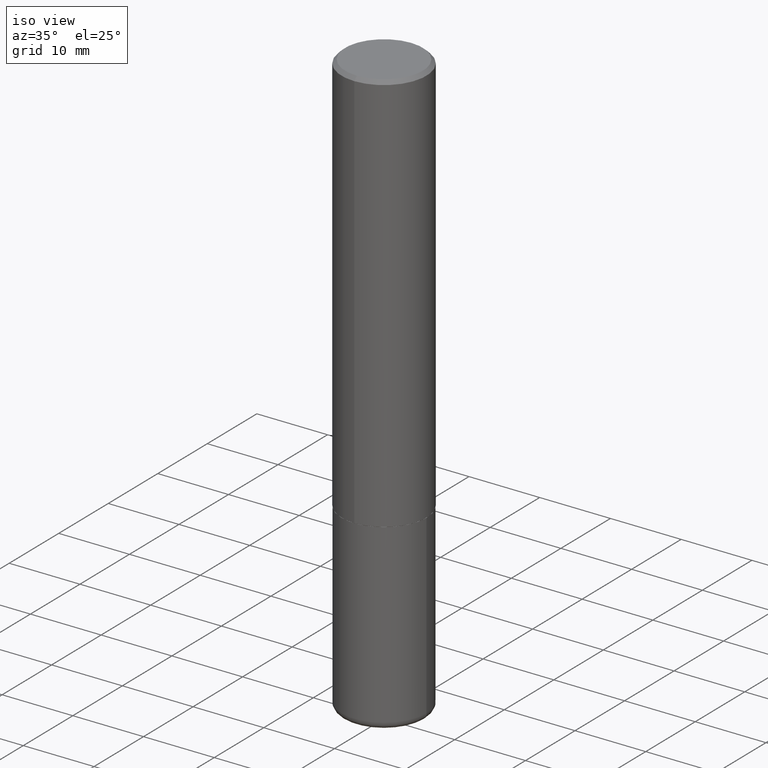
[diagram: clean part render]
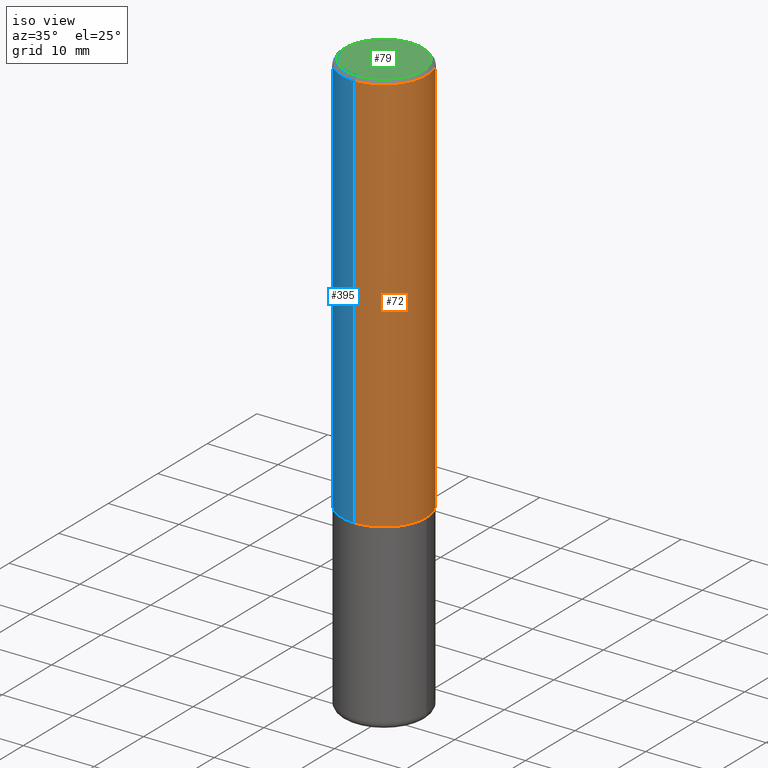
[diagram: same view with three faces highlighted in distinct colors, each labeled with its STEP entity id]
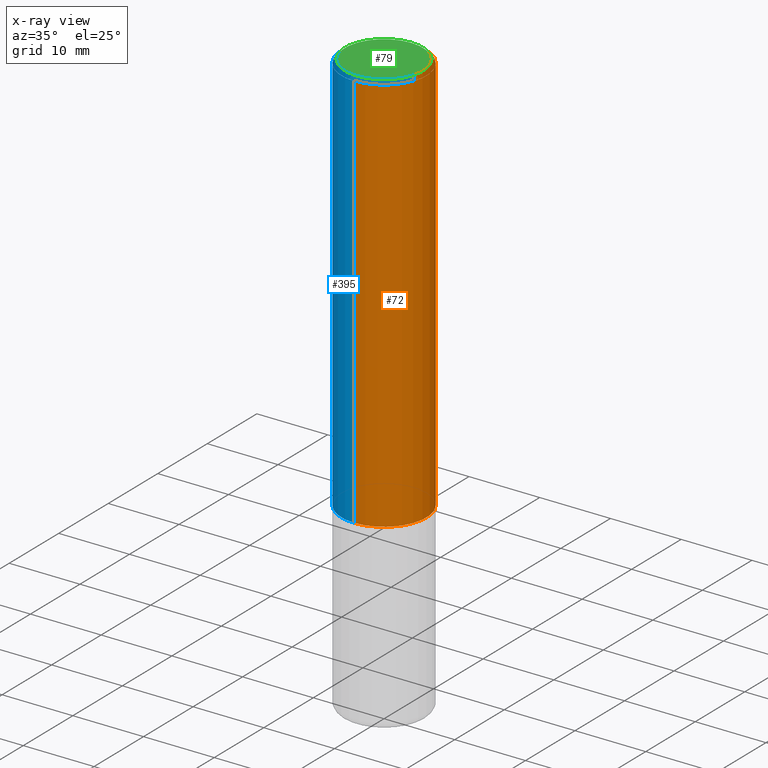
[diagram: x-ray of the same camera — body ghosted, the three highlighted faces saturated]
A machine part, iso view with three faces highlighted in distinct colors.
The next image is the same camera in x-ray (body ghosted, the three faces saturated) — at least one of them is partly hidden behind the body in this view.
Their STEP definitions:

[orange] entity #72 — the highlighted cylindrical surface (partial cylindrical patch) has radius 5.9995 mm, axis along (-0, 0, 1).
#1 = CIRCLE ( 'NONE', #234, 0.2361999999999999933 ) ;
#11 = CARTESIAN_POINT ( 'NONE',  ( 4.886397103869442398E-31, -6.989464944289237832E-17, -0.02000000000000009062 ) ) ;
#32 = CARTESIAN_POINT ( 'NONE',  ( -1.649375784469496920E-15, -0.2362000000000001321, 8.254558099205557624E-16 ) ) ;
#34 = DIRECTION ( 'NONE',  ( -2.443198551934710321E-29, 3.494732472144603016E-15, 1.000000000000000000 ) ) ;
#54 = DIRECTION ( 'NONE',  ( -6.982962677686265922E-15, -1.000000000000000000, 3.494732472144603410E-15 ) ) ;
#72 = ADVANCED_FACE ( 'NONE', ( #246 ), #90, .T. ) ;
#75 = CARTESIAN_POINT ( 'NONE',  ( 5.480338671844748839E-29, -7.839034408267561952E-15, -2.243100000000000094 ) ) ;
#90 = CYLINDRICAL_SURFACE ( 'NONE', #219, 0.2362000000000001321 ) ;
#97 = VECTOR ( 'NONE', #34, 39.37007874015748143 ) ;
#132 = AXIS2_PLACEMENT_3D ( 'NONE', #75, #327, #230 ) ;
#146 = EDGE_CURVE ( 'NONE', #397, #207, #322, .T. ) ;
#158 = CARTESIAN_POINT ( 'NONE',  ( 1.649375784469496525E-15, 0.2361999999999999378, -0.02000000000000091288 ) ) ;
#162 = CARTESIAN_POINT ( 'NONE',  ( -1.649375784469443080E-15, -0.2362000000000081257, -2.243099999999999206 ) ) ;
#190 = DIRECTION ( 'NONE',  ( -2.443198551934710321E-29, 3.494732472144603016E-15, 1.000000000000000000 ) ) ;
#203 = ORIENTED_EDGE ( 'NONE', *, *, #391, .F. ) ;
#207 = VERTEX_POINT ( 'NONE', #287 ) ;
#219 = AXIS2_PLACEMENT_3D ( 'NONE', #305, #271, #54 ) ;
#230 = DIRECTION ( 'NONE',  ( -6.982962677686265922E-15, -1.000000000000000000, 3.469747663417773058E-15 ) ) ;
#234 = AXIS2_PLACEMENT_3D ( 'NONE', #11, #335, #363 ) ;
#237 = EDGE_LOOP ( 'NONE', ( #272, #328, #203, #406 ) ) ;
#246 = FACE_OUTER_BOUND ( 'NONE', #237, .T. ) ;
#261 = VERTEX_POINT ( 'NONE', #158 ) ;
#264 = CARTESIAN_POINT ( 'NONE',  ( 1.678301941865385582E-15, 0.2361999999999924160, -2.243100000000000982 ) ) ;
#271 = DIRECTION ( 'NONE',  ( -2.443198551934710321E-29, 3.494732472144603410E-15, 1.000000000000000000 ) ) ;
#272 = ORIENTED_EDGE ( 'NONE', *, *, #370, .T. ) ;
#273 = EDGE_CURVE ( 'NONE', #408, #261, #418, .T. ) ;
#282 = VECTOR ( 'NONE', #190, 39.37007874015748143 ) ;
#287 = CARTESIAN_POINT ( 'NONE',  ( -1.620449627073635079E-15, -0.2362000000000000766, -0.01999999999999926489 ) ) ;
#305 = CARTESIAN_POINT ( 'NONE',  ( 0.000000000000000000, 0.000000000000000000, 0.000000000000000000 ) ) ;
#322 = LINE ( 'NONE', #32, #97 ) ;
#327 = DIRECTION ( 'NONE',  ( -2.443198551934710321E-29, 3.494732472144603410E-15, 1.000000000000000000 ) ) ;
#328 = ORIENTED_EDGE ( 'NONE', *, *, #273, .T. ) ;
#335 = DIRECTION ( 'NONE',  ( -2.443198551934710321E-29, 3.494732472144603410E-15, 1.000000000000000000 ) ) ;
#363 = DIRECTION ( 'NONE',  ( -6.982962677686265922E-15, -1.000000000000000000, 3.487819265831411744E-15 ) ) ;
#366 = CIRCLE ( 'NONE', #132, 0.2362000000000002709 ) ;
#370 = EDGE_CURVE ( 'NONE', #397, #408, #366, .T. ) ;
#382 = CARTESIAN_POINT ( 'NONE',  ( 1.678301941865357380E-15, 0.2362000000000001321, -8.254558099205557624E-16 ) ) ;
#391 = EDGE_CURVE ( 'NONE', #207, #261, #1, .T. ) ;
#397 = VERTEX_POINT ( 'NONE', #162 ) ;
#406 = ORIENTED_EDGE ( 'NONE', *, *, #146, .F. ) ;
#408 = VERTEX_POINT ( 'NONE', #264 ) ;
#418 = LINE ( 'NONE', #382, #282 ) ;

[blue] entity #395 — the highlighted cylindrical surface (partial cylindrical patch) has radius 5.9995 mm, axis along (-0, 0, 1).
#10 = CIRCLE ( 'NONE', #118, 0.2362000000000002709 ) ;
#12 = EDGE_LOOP ( 'NONE', ( #265, #291, #300, #360 ) ) ;
#16 = DIRECTION ( 'NONE',  ( -2.443198551934710321E-29, 3.494732472144603410E-15, 1.000000000000000000 ) ) ;
#32 = CARTESIAN_POINT ( 'NONE',  ( -1.649375784469496920E-15, -0.2362000000000001321, 8.254558099205557624E-16 ) ) ;
#34 = DIRECTION ( 'NONE',  ( -2.443198551934710321E-29, 3.494732472144603016E-15, 1.000000000000000000 ) ) ;
#37 = DIRECTION ( 'NONE',  ( -2.443198551934710321E-29, 3.494732472144603410E-15, 1.000000000000000000 ) ) ;
#38 = DIRECTION ( 'NONE',  ( -6.982962677686265922E-15, -1.000000000000000000, 3.487819265831411744E-15 ) ) ;
#47 = FACE_OUTER_BOUND ( 'NONE', #12, .T. ) ;
#97 = VECTOR ( 'NONE', #34, 39.37007874015748143 ) ;
#99 = EDGE_CURVE ( 'NONE', #408, #397, #10, .T. ) ;
#118 = AXIS2_PLACEMENT_3D ( 'NONE', #302, #16, #145 ) ;
#145 = DIRECTION ( 'NONE',  ( -6.982962677686265922E-15, -1.000000000000000000, 3.469747663417773058E-15 ) ) ;
#146 = EDGE_CURVE ( 'NONE', #397, #207, #322, .T. ) ;
#158 = CARTESIAN_POINT ( 'NONE',  ( 1.649375784469496525E-15, 0.2361999999999999378, -0.02000000000000091288 ) ) ;
#159 = CIRCLE ( 'NONE', #340, 0.2361999999999999933 ) ;
#162 = CARTESIAN_POINT ( 'NONE',  ( -1.649375784469443080E-15, -0.2362000000000081257, -2.243099999999999206 ) ) ;
#190 = DIRECTION ( 'NONE',  ( -2.443198551934710321E-29, 3.494732472144603016E-15, 1.000000000000000000 ) ) ;
#207 = VERTEX_POINT ( 'NONE', #287 ) ;
#259 = CARTESIAN_POINT ( 'NONE',  ( 4.886397103869442398E-31, -6.989464944289237832E-17, -0.02000000000000009062 ) ) ;
#261 = VERTEX_POINT ( 'NONE', #158 ) ;
#264 = CARTESIAN_POINT ( 'NONE',  ( 1.678301941865385582E-15, 0.2361999999999924160, -2.243100000000000982 ) ) ;
#265 = ORIENTED_EDGE ( 'NONE', *, *, #273, .F. ) ;
#273 = EDGE_CURVE ( 'NONE', #408, #261, #418, .T. ) ;
#282 = VECTOR ( 'NONE', #190, 39.37007874015748143 ) ;
#287 = CARTESIAN_POINT ( 'NONE',  ( -1.620449627073635079E-15, -0.2362000000000000766, -0.01999999999999926489 ) ) ;
#291 = ORIENTED_EDGE ( 'NONE', *, *, #99, .T. ) ;
#292 = EDGE_CURVE ( 'NONE', #261, #207, #159, .T. ) ;
#293 = CARTESIAN_POINT ( 'NONE',  ( 0.000000000000000000, 0.000000000000000000, 0.000000000000000000 ) ) ;
#300 = ORIENTED_EDGE ( 'NONE', *, *, #146, .T. ) ;
#302 = CARTESIAN_POINT ( 'NONE',  ( 5.480338671844748839E-29, -7.839034408267561952E-15, -2.243100000000000094 ) ) ;
#322 = LINE ( 'NONE', #32, #97 ) ;
#325 = CYLINDRICAL_SURFACE ( 'NONE', #348, 0.2362000000000001321 ) ;
#330 = DIRECTION ( 'NONE',  ( -2.443198551934710321E-29, 3.494732472144603410E-15, 1.000000000000000000 ) ) ;
#340 = AXIS2_PLACEMENT_3D ( 'NONE', #259, #330, #38 ) ;
#348 = AXIS2_PLACEMENT_3D ( 'NONE', #293, #37, #361 ) ;
#360 = ORIENTED_EDGE ( 'NONE', *, *, #292, .F. ) ;
#361 = DIRECTION ( 'NONE',  ( -6.982962677686265922E-15, -1.000000000000000000, 3.494732472144603410E-15 ) ) ;
#382 = CARTESIAN_POINT ( 'NONE',  ( 1.678301941865357380E-15, 0.2362000000000001321, -8.254558099205557624E-16 ) ) ;
#395 = ADVANCED_FACE ( 'NONE', ( #47 ), #325, .T. ) ;
#397 = VERTEX_POINT ( 'NONE', #162 ) ;
#408 = VERTEX_POINT ( 'NONE', #264 ) ;
#418 = LINE ( 'NONE', #382, #282 ) ;

[green] entity #79 — the highlighted planar face has unit normal (0, -0, -1).
#14 = VERTEX_POINT ( 'NONE', #122 ) ;
#20 = CARTESIAN_POINT ( 'NONE',  ( 1.509716530915772690E-15, 0.2162000000000002808, -9.024733938762408486E-16 ) ) ;
#48 = VERTEX_POINT ( 'NONE', #112 ) ;
#65 = DIRECTION ( 'NONE',  ( -6.982962677686265922E-15, -1.000000000000000000, 3.494732472144603410E-15 ) ) ;
#79 = ADVANCED_FACE ( 'NONE', ( #180 ), #242, .F. ) ;
#112 = CARTESIAN_POINT ( 'NONE',  ( 1.579546157692634608E-15, 0.2162000000000002808, -1.049385627274817561E-15 ) ) ;
#122 = CARTESIAN_POINT ( 'NONE',  ( -1.551844647095920733E-15, -0.2162000000000002808, 4.617366936805109079E-16 ) ) ;
#129 = AXIS2_PLACEMENT_3D ( 'NONE', #205, #323, #390 ) ;
#137 = ORIENTED_EDGE ( 'NONE', *, *, #238, .T. ) ;
#148 = DIRECTION ( 'NONE',  ( 2.443198551934710321E-29, -3.494732472144603016E-15, -1.000000000000000000 ) ) ;
#180 = FACE_OUTER_BOUND ( 'NONE', #336, .T. ) ;
#205 = CARTESIAN_POINT ( 'NONE',  ( 7.178715118017931868E-45, -1.026837905226585320E-30, -2.938244667971532280E-16 ) ) ;
#213 = CIRCLE ( 'NONE', #243, 0.2162000000000002808 ) ;
#223 = CARTESIAN_POINT ( 'NONE',  ( 7.178715118017931868E-45, -1.026837905226585320E-30, -2.938244667971532280E-16 ) ) ;
#238 = EDGE_CURVE ( 'NONE', #48, #14, #213, .T. ) ;
#242 = PLANE ( 'NONE',  #304 ) ;
#243 = AXIS2_PLACEMENT_3D ( 'NONE', #223, #356, #65 ) ;
#295 = CIRCLE ( 'NONE', #129, 0.2162000000000002808 ) ;
#304 = AXIS2_PLACEMENT_3D ( 'NONE', #20, #148, #405 ) ;
#323 = DIRECTION ( 'NONE',  ( -2.443198551934710321E-29, 3.494732472144603410E-15, 1.000000000000000000 ) ) ;
#336 = EDGE_LOOP ( 'NONE', ( #137, #341 ) ) ;
#341 = ORIENTED_EDGE ( 'NONE', *, *, #359, .T. ) ;
#356 = DIRECTION ( 'NONE',  ( -2.443198551934710321E-29, 3.494732472144603410E-15, 1.000000000000000000 ) ) ;
#359 = EDGE_CURVE ( 'NONE', #14, #48, #295, .T. ) ;
#390 = DIRECTION ( 'NONE',  ( -6.982962677686265922E-15, -1.000000000000000000, 3.494732472144603410E-15 ) ) ;
#405 = DIRECTION ( 'NONE',  ( 6.982962677686265922E-15, 1.000000000000000000, -3.494732472144603016E-15 ) ) ;